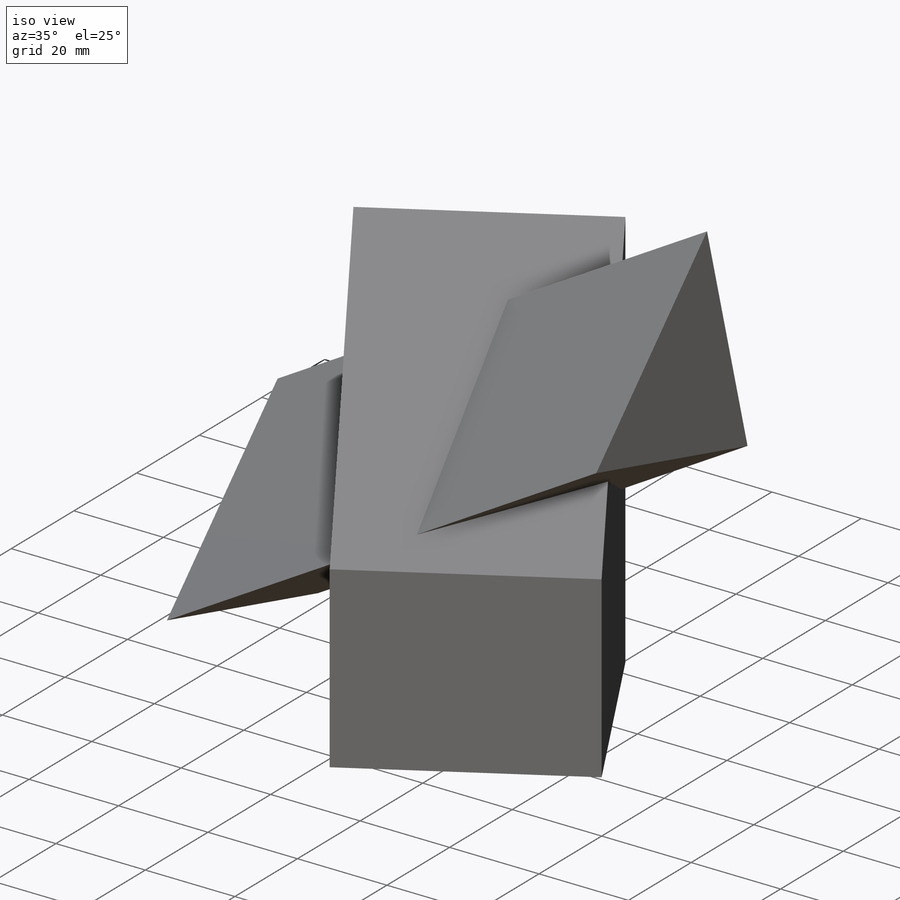
[diagram: iso view]
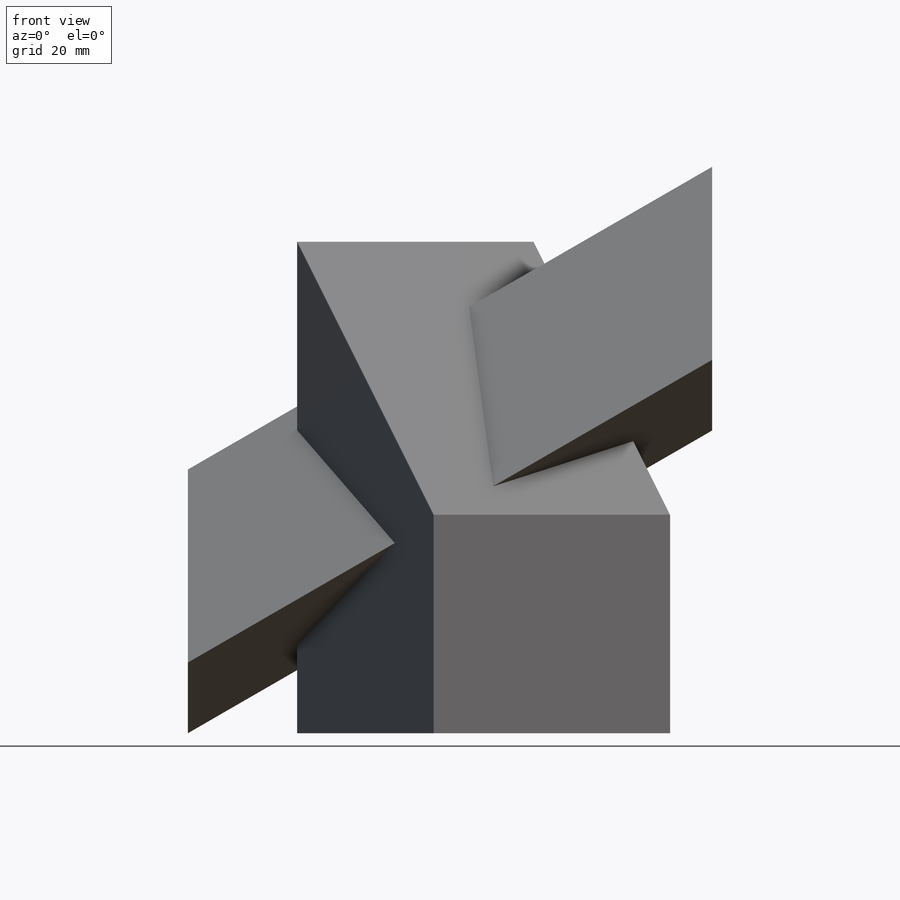
[diagram: front view]
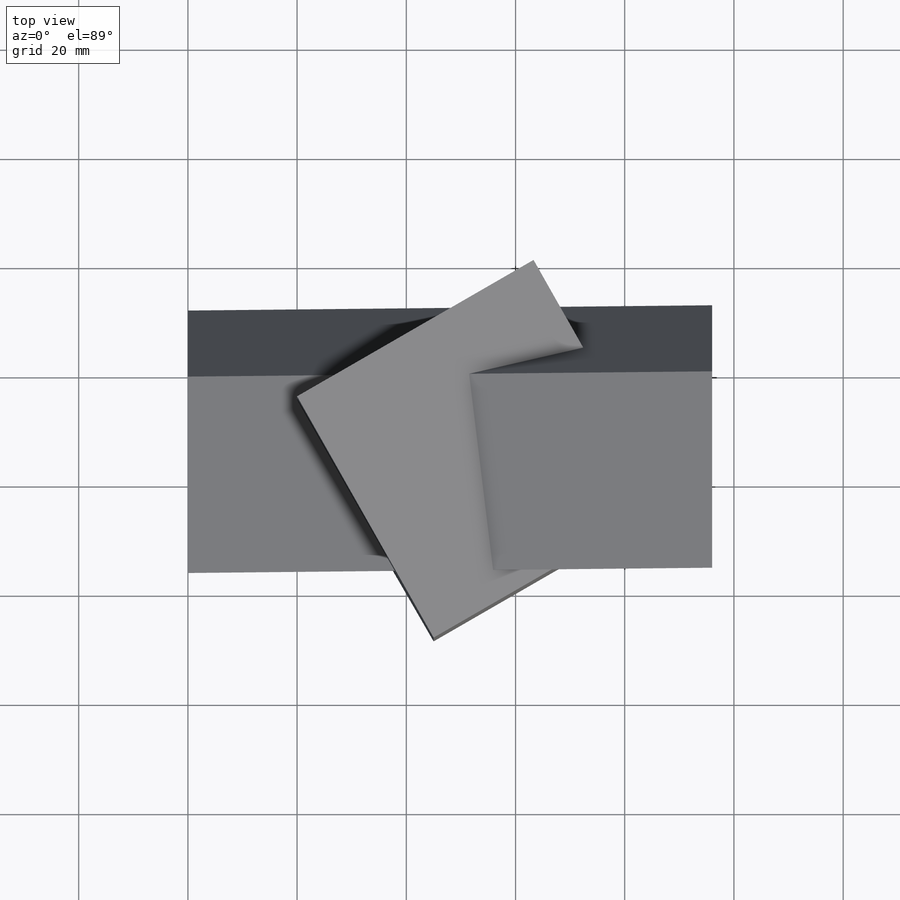
[diagram: top view]
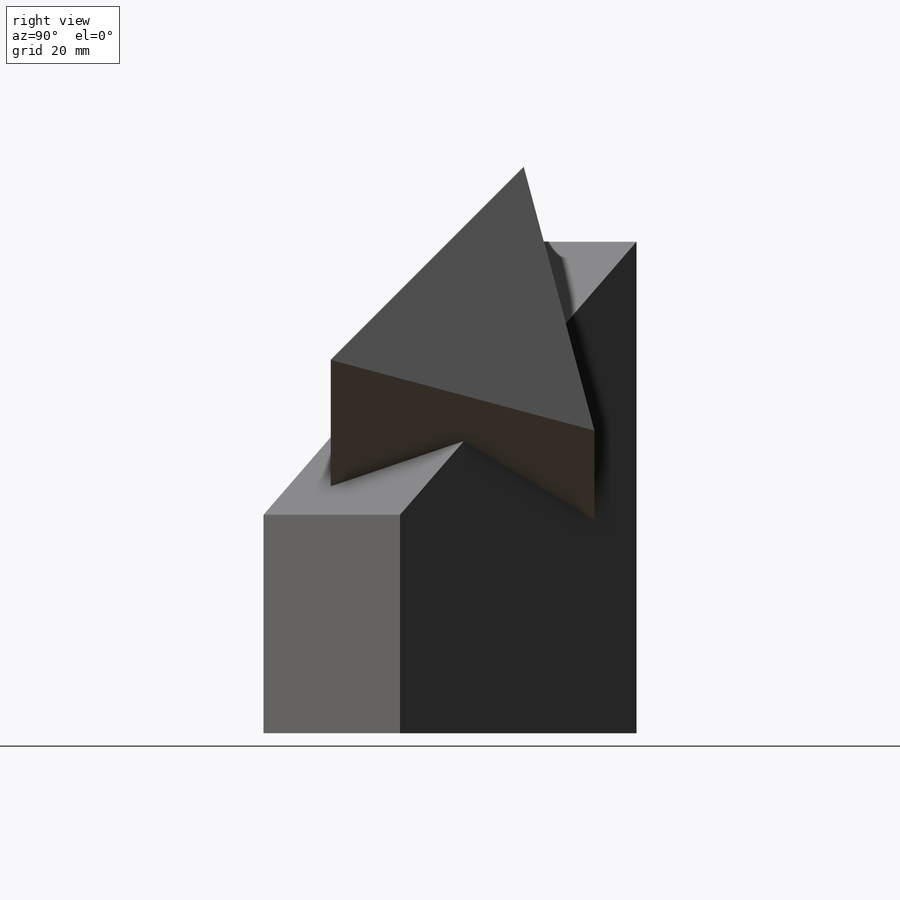
[diagram: right view]
SOLIDWORKS PART (.sldprt)
format: sldprt  version: not decoded by parser v0  size: 150,016 bytes
history: native  units: mm
features: sketch x4, material x1, extrude x1, cut_extrude x1, plane x1, sweep x1 (+12 scaffold rows collapsed)
feature tree (21):
  scaffold x12  (default folders/planes/origin — collapsed)
  material  "Material <not specified>"
  sketch  "Sketch2"  dims[c1.D1=50.0mm c1.D2=50.0mm c2.D2=30.0deg c2.D3=20.0mm]
  extrude  "square prism"  Depth=90mm
  sketch  "Sketch3"  dims[D1=40.0mm]
  cut_extrude  "Cut on square prism"  [1 undecoded]
  sketch  "triangle"  dims[c1.D1=50.0mm c1.D2=50.0mm c2.D2=15.0deg c2.D3=56.0mm]
  plane  "Plane for swept path"  Offset=56mm
  sketch  "path"  dims[c1.D1=96.0mm c1.D2=~58.004626mm c2.D2=60.0deg]
  sweep  "Equilateral triangle prism"
decode coverage: 5 of 7 modeling features carry decoded parameters
note: ~ marks probable driven/reference dimensions
note: 1 parameter value undecoded
note: suppression state not decoded; provenance and decode notes live in map.json
